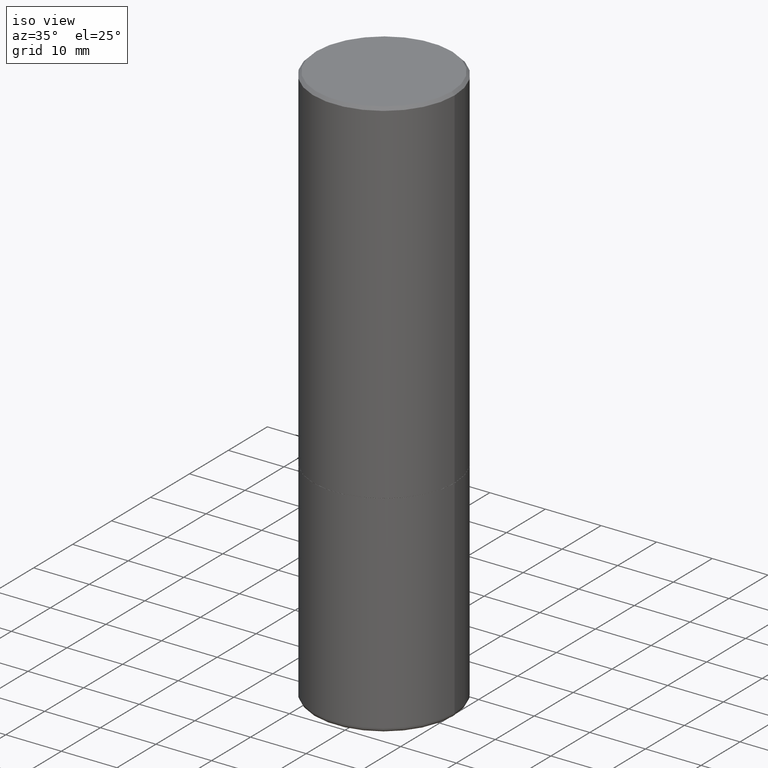
[diagram: clean part render]
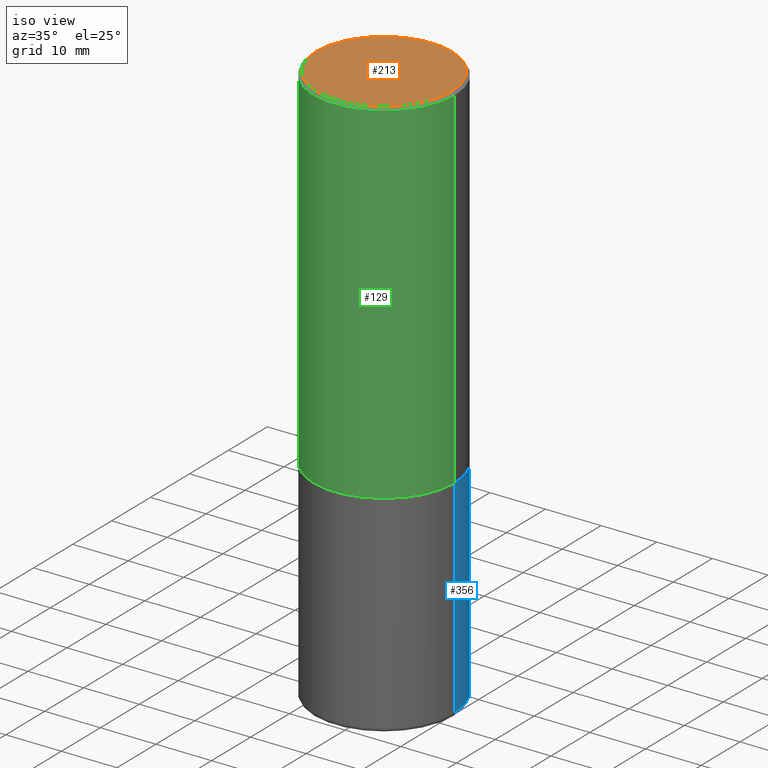
[diagram: same view with three faces highlighted in distinct colors, each labeled with its STEP entity id]
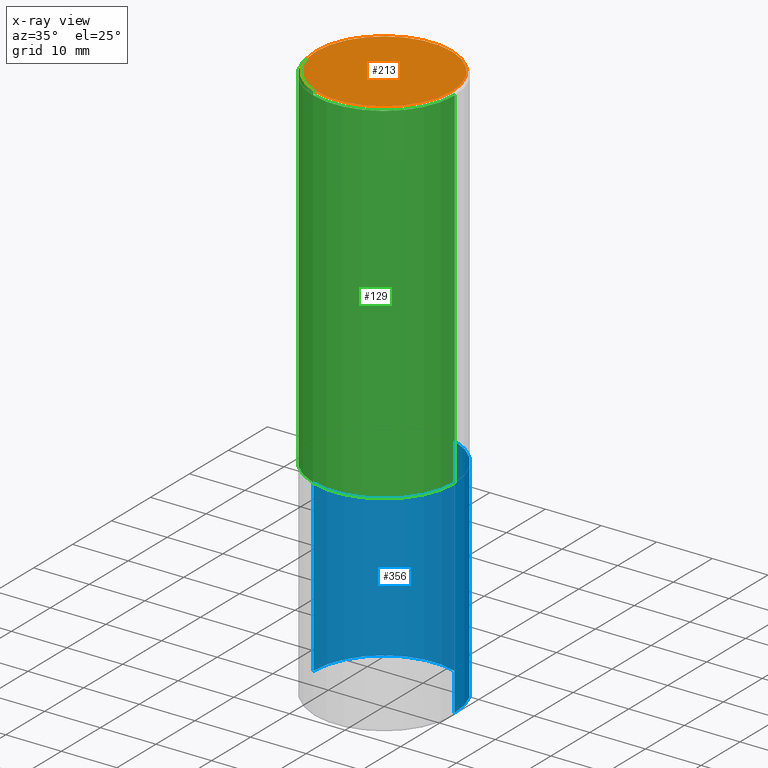
[diagram: x-ray of the same camera — body ghosted, the three highlighted faces saturated]
A machine part, iso view with three faces highlighted in distinct colors.
The next image is the same camera in x-ray (body ghosted, the three faces saturated) — at least one of them is partly hidden behind the body in this view.
Their STEP definitions:

[orange] entity #213 — the highlighted planar face has unit normal (0, -0, -1).
#36 = DIRECTION ( 'NONE',  ( -2.445468806185136597E-29, 3.491481338843145583E-15, 1.000000000000000000 ) ) ;
#39 = CARTESIAN_POINT ( 'NONE',  ( -0.4799999999999996492, 3.386736898677836830E-15, 1.280553747027767124E-17 ) ) ;
#44 = EDGE_LOOP ( 'NONE', ( #355, #79 ) ) ;
#72 = PLANE ( 'NONE',  #373 ) ;
#79 = ORIENTED_EDGE ( 'NONE', *, *, #199, .T. ) ;
#80 = DIRECTION ( 'NONE',  ( 1.000000000000000000, -6.982962677686267499E-15, 4.876036955247132767E-29 ) ) ;
#83 = VERTEX_POINT ( 'NONE', #124 ) ;
#101 = EDGE_CURVE ( 'NONE', #352, #83, #380, .T. ) ;
#110 = CARTESIAN_POINT ( 'NONE',  ( -3.131554243005659264E-46, 4.471029511141341874E-32, 1.280553747030123384E-17 ) ) ;
#124 = CARTESIAN_POINT ( 'NONE',  ( 0.4799999999999996492, -3.396558832296480127E-15, 1.280553747032483033E-17 ) ) ;
#154 = DIRECTION ( 'NONE',  ( -2.445468806185136597E-29, 3.491481338843145583E-15, 1.000000000000000000 ) ) ;
#163 = DIRECTION ( 'NONE',  ( 1.000000000000000000, -6.982962677686267499E-15, 4.876036955247132767E-29 ) ) ;
#171 = DIRECTION ( 'NONE',  ( 2.438088387897960049E-29, -3.491481338843145188E-15, -1.000000000000000000 ) ) ;
#181 = CIRCLE ( 'NONE', #327, 0.4799999999999996492 ) ;
#189 = AXIS2_PLACEMENT_3D ( 'NONE', #372, #154, #163 ) ;
#199 = EDGE_CURVE ( 'NONE', #83, #352, #181, .T. ) ;
#213 = ADVANCED_FACE ( 'NONE', ( #316 ), #72, .F. ) ;
#275 = DIRECTION ( 'NONE',  ( -1.000000000000000000, 6.982962677686265922E-15, -4.876176775795935793E-29 ) ) ;
#316 = FACE_OUTER_BOUND ( 'NONE', #44, .T. ) ;
#327 = AXIS2_PLACEMENT_3D ( 'NONE', #110, #36, #80 ) ;
#352 = VERTEX_POINT ( 'NONE', #39 ) ;
#355 = ORIENTED_EDGE ( 'NONE', *, *, #101, .T. ) ;
#372 = CARTESIAN_POINT ( 'NONE',  ( -3.131554243005659264E-46, 4.471029511141341874E-32, 1.280553747030123384E-17 ) ) ;
#373 = AXIS2_PLACEMENT_3D ( 'NONE', #442, #171, #275 ) ;
#380 = CIRCLE ( 'NONE', #189, 0.4799999999999996492 ) ;
#442 = CARTESIAN_POINT ( 'NONE',  ( 3.351822085289405181E-15, 0.4799999999999996492, -1.669508273909558064E-15 ) ) ;

[blue] entity #356 — the highlighted cylindrical surface (partial cylindrical patch) has radius 12.7 mm, axis along (-0, 0, 1).
#6 = ORIENTED_EDGE ( 'NONE', *, *, #272, .F. ) ;
#7 = DIRECTION ( 'NONE',  ( -2.445468806185136597E-29, 3.491481338843145583E-15, 1.000000000000000000 ) ) ;
#17 = CARTESIAN_POINT ( 'NONE',  ( 9.708511160554992872E-29, -1.386118091520728738E-14, -3.970000000000000195 ) ) ;
#45 = VERTEX_POINT ( 'NONE', #98 ) ;
#56 = EDGE_CURVE ( 'NONE', #192, #45, #58, .T. ) ;
#58 = CIRCLE ( 'NONE', #125, 0.5000000000000000000 ) ;
#59 = AXIS2_PLACEMENT_3D ( 'NONE', #321, #7, #144 ) ;
#68 = ORIENTED_EDGE ( 'NONE', *, *, #287, .F. ) ;
#76 = ORIENTED_EDGE ( 'NONE', *, *, #371, .T. ) ;
#98 = CARTESIAN_POINT ( 'NONE',  ( -0.5000000000000000000, -1.030846723640678645E-14, -3.970000000000000195 ) ) ;
#102 = CIRCLE ( 'NONE', #271, 0.5000000000000000000 ) ;
#104 = CARTESIAN_POINT ( 'NONE',  ( -0.5000000000000000000, 3.552713678800500929E-15, -2.459467545127452891E-29 ) ) ;
#107 = DIRECTION ( 'NONE',  ( -2.445468806185136877E-29, 3.491481338843145188E-15, 1.000000000000000000 ) ) ;
#125 = AXIS2_PLACEMENT_3D ( 'NONE', #17, #232, #165 ) ;
#139 = CYLINDRICAL_SURFACE ( 'NONE', #59, 0.5000000000000000000 ) ;
#141 = LINE ( 'NONE', #349, #388 ) ;
#144 = DIRECTION ( 'NONE',  ( 1.000000000000000000, -6.982962677686266711E-15, 4.876176775795935793E-29 ) ) ;
#165 = DIRECTION ( 'NONE',  ( 1.000000000000000000, -6.982962677686266711E-15, 0.000000000000000000 ) ) ;
#180 = FACE_OUTER_BOUND ( 'NONE', #297, .T. ) ;
#192 = VERTEX_POINT ( 'NONE', #391 ) ;
#209 = CARTESIAN_POINT ( 'NONE',  ( 6.113672015462842613E-29, -8.728703347107864943E-15, -2.500000000000000000 ) ) ;
#232 = DIRECTION ( 'NONE',  ( -2.445468806185136597E-29, 3.491481338843145583E-15, 1.000000000000000000 ) ) ;
#241 = DIRECTION ( 'NONE',  ( -2.445468806185136877E-29, 3.491481338843145188E-15, 1.000000000000000000 ) ) ;
#243 = DIRECTION ( 'NONE',  ( 1.000000000000000000, -6.982962677686269077E-15, 0.000000000000000000 ) ) ;
#245 = VECTOR ( 'NONE', #241, 39.37007874015748143 ) ;
#271 = AXIS2_PLACEMENT_3D ( 'NONE', #209, #403, #243 ) ;
#272 = EDGE_CURVE ( 'NONE', #374, #441, #102, .T. ) ;
#284 = CARTESIAN_POINT ( 'NONE',  ( -0.5000000000000000000, -7.742228452357075234E-15, -2.500000000000000000 ) ) ;
#287 = EDGE_CURVE ( 'NONE', #192, #374, #141, .T. ) ;
#297 = EDGE_LOOP ( 'NONE', ( #361, #76, #6, #68 ) ) ;
#321 = CARTESIAN_POINT ( 'NONE',  ( 0.000000000000000000, 0.000000000000000000, 0.000000000000000000 ) ) ;
#349 = CARTESIAN_POINT ( 'NONE',  ( 0.5000000000000000000, -3.491481338843133355E-15, 2.438088387897967896E-29 ) ) ;
#356 = ADVANCED_FACE ( 'NONE', ( #180 ), #139, .T. ) ;
#361 = ORIENTED_EDGE ( 'NONE', *, *, #56, .T. ) ;
#371 = EDGE_CURVE ( 'NONE', #45, #441, #407, .T. ) ;
#374 = VERTEX_POINT ( 'NONE', #377 ) ;
#377 = CARTESIAN_POINT ( 'NONE',  ( 0.5000000000000000000, -1.222018468595099830E-14, -2.500000000000000000 ) ) ;
#388 = VECTOR ( 'NONE', #107, 39.37007874015748143 ) ;
#391 = CARTESIAN_POINT ( 'NONE',  ( 0.5000000000000000000, -1.735266225405042074E-14, -3.970000000000000195 ) ) ;
#403 = DIRECTION ( 'NONE',  ( -2.445468806185136597E-29, 3.491481338843145583E-15, 1.000000000000000000 ) ) ;
#407 = LINE ( 'NONE', #104, #245 ) ;
#441 = VERTEX_POINT ( 'NONE', #284 ) ;

[green] entity #129 — the highlighted cylindrical surface (partial cylindrical patch) has radius 12.7 mm, axis along (-0, 0, 1).
#49 = LINE ( 'NONE', #183, #397 ) ;
#57 = CYLINDRICAL_SURFACE ( 'NONE', #425, 0.4999999999999998335 ) ;
#70 = ORIENTED_EDGE ( 'NONE', *, *, #94, .T. ) ;
#71 = CIRCLE ( 'NONE', #130, 0.5000000000000000000 ) ;
#74 = AXIS2_PLACEMENT_3D ( 'NONE', #212, #273, #351 ) ;
#84 = LINE ( 'NONE', #148, #190 ) ;
#88 = FACE_OUTER_BOUND ( 'NONE', #218, .T. ) ;
#89 = ORIENTED_EDGE ( 'NONE', *, *, #410, .T. ) ;
#92 = CARTESIAN_POINT ( 'NONE',  ( 6.111226546656657010E-29, -8.725211865769021935E-15, -2.499000000000000110 ) ) ;
#94 = EDGE_CURVE ( 'NONE', #143, #117, #71, .T. ) ;
#96 = CARTESIAN_POINT ( 'NONE',  ( -0.5000000000000000000, -8.448070674724411945E-16, -2.499000000000000110 ) ) ;
#105 = CARTESIAN_POINT ( 'NONE',  ( -0.4999999999999997224, 3.421651712066268085E-15, -0.02000000000000011144 ) ) ;
#117 = VERTEX_POINT ( 'NONE', #364 ) ;
#129 = ADVANCED_FACE ( 'NONE', ( #88 ), #57, .T. ) ;
#130 = AXIS2_PLACEMENT_3D ( 'NONE', #92, #424, #266 ) ;
#135 = ORIENTED_EDGE ( 'NONE', *, *, #337, .F. ) ;
#143 = VERTEX_POINT ( 'NONE', #96 ) ;
#148 = CARTESIAN_POINT ( 'NONE',  ( 0.4999999999999998335, -3.491481338843132566E-15, 2.438088387897967336E-29 ) ) ;
#175 = VERTEX_POINT ( 'NONE', #221 ) ;
#183 = CARTESIAN_POINT ( 'NONE',  ( -0.4999999999999998335, 3.552713678800499746E-15, -2.459467545127452330E-29 ) ) ;
#190 = VECTOR ( 'NONE', #363, 39.37007874015748143 ) ;
#212 = CARTESIAN_POINT ( 'NONE',  ( 4.890937612370301184E-31, -6.982962677686329819E-17, -0.02000000000000011144 ) ) ;
#218 = EDGE_LOOP ( 'NONE', ( #382, #70, #89, #135 ) ) ;
#221 = CARTESIAN_POINT ( 'NONE',  ( 0.4999999999999997224, -3.500078625662627502E-15, -0.02000000000000011144 ) ) ;
#257 = DIRECTION ( 'NONE',  ( -2.445468806185136597E-29, 3.491481338843145583E-15, 1.000000000000000000 ) ) ;
#260 = CARTESIAN_POINT ( 'NONE',  ( 0.000000000000000000, 0.000000000000000000, 0.000000000000000000 ) ) ;
#266 = DIRECTION ( 'NONE',  ( 1.000000000000000000, -6.982962677686265133E-15, 0.000000000000000000 ) ) ;
#273 = DIRECTION ( 'NONE',  ( -2.445468806185136597E-29, 3.491481338843145583E-15, 1.000000000000000000 ) ) ;
#283 = VERTEX_POINT ( 'NONE', #105 ) ;
#286 = DIRECTION ( 'NONE',  ( -2.445468806185136877E-29, 3.491481338843145188E-15, 1.000000000000000000 ) ) ;
#337 = EDGE_CURVE ( 'NONE', #283, #175, #419, .T. ) ;
#351 = DIRECTION ( 'NONE',  ( 1.000000000000000000, -6.982962677686266711E-15, 0.000000000000000000 ) ) ;
#363 = DIRECTION ( 'NONE',  ( -2.445468806185136877E-29, 3.491481338843145188E-15, 1.000000000000000000 ) ) ;
#364 = CARTESIAN_POINT ( 'NONE',  ( 0.5000000000000000000, -1.221669320461215371E-14, -2.499000000000000110 ) ) ;
#382 = ORIENTED_EDGE ( 'NONE', *, *, #439, .F. ) ;
#393 = DIRECTION ( 'NONE',  ( 1.000000000000000000, -6.982962677686267499E-15, 4.876176775795936353E-29 ) ) ;
#397 = VECTOR ( 'NONE', #286, 39.37007874015748143 ) ;
#410 = EDGE_CURVE ( 'NONE', #117, #175, #84, .T. ) ;
#419 = CIRCLE ( 'NONE', #74, 0.4999999999999997224 ) ;
#424 = DIRECTION ( 'NONE',  ( -2.445468806185136597E-29, 3.491481338843145583E-15, 1.000000000000000000 ) ) ;
#425 = AXIS2_PLACEMENT_3D ( 'NONE', #260, #257, #393 ) ;
#439 = EDGE_CURVE ( 'NONE', #143, #283, #49, .T. ) ;